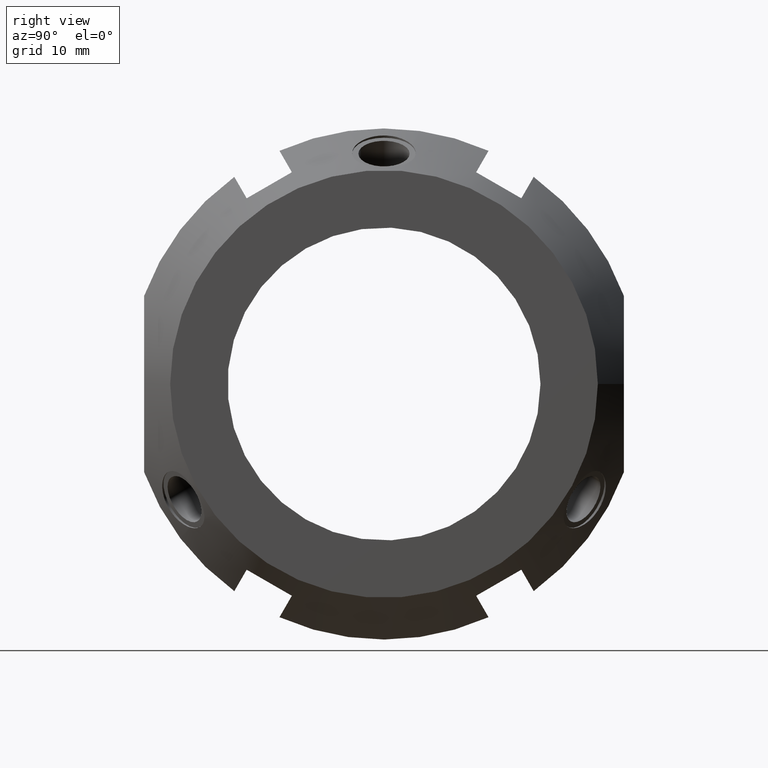
[diagram: clean part render]
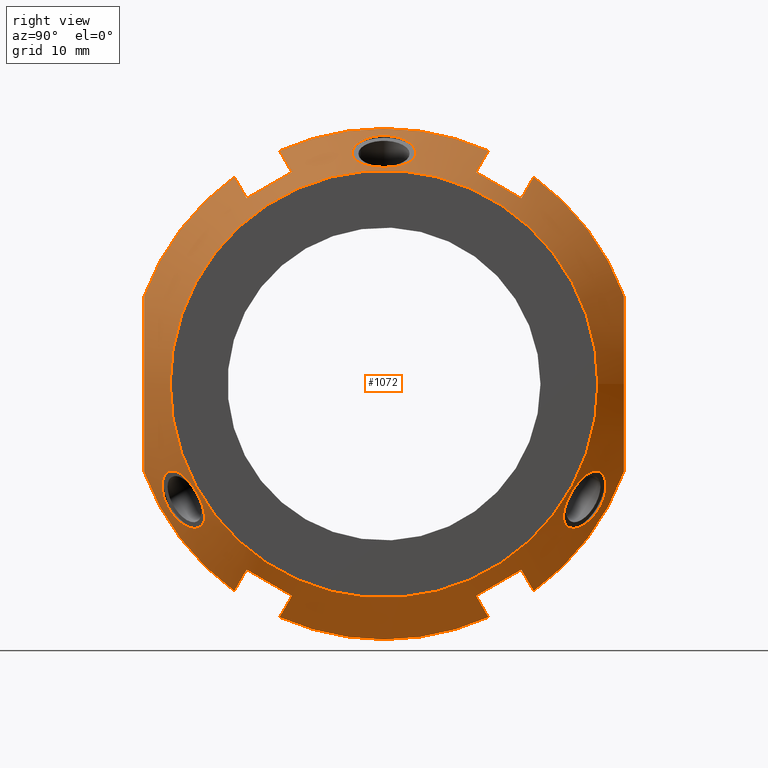
[diagram: same view with one face highlighted and labeled with its STEP entity id]
A machine part, right view. The second image highlights one B-rep face of the part: STEP entity #1072.
In plain terms, the highlighted conical surface has half-angle 30 deg.
Its self-contained STEP definition (entity closure, byte-faithful):
#90=CARTESIAN_POINT('',(17.156683017072663,13.165063509461106,-17.802558883257646));
#91=VERTEX_POINT('',#90);
#98=CARTESIAN_POINT('',(17.15668301707268,8.834936490538912,-20.302558883257639));
#99=VERTEX_POINT('',#98);
#100=CARTESIAN_POINT('',(17.15668301707268,8.834936490538912,-20.302558883257639));
#101=CARTESIAN_POINT('',(17.645596307971299,11.000000000000023,-19.052558883257632));
#102=CARTESIAN_POINT('',(17.156683017072663,13.165063509461106,-17.802558883257646));
#110=(BOUNDED_CURVE()B_SPLINE_CURVE(2,(#100,#101,#102),.UNSPECIFIED.,.F.,.U.)B_SPLINE_CURVE_WITH_KNOTS((3,3),(0.878093041452281,1.445696966272174),.UNSPECIFIED.)CURVE()GEOMETRIC_REPRESENTATION_ITEM()RATIONAL_B_SPLINE_CURVE((1.053428301604893,1.06020806203147,1.053428301604893))REPRESENTATION_ITEM(''));
#111=EDGE_CURVE('',#99,#91,#110,.T.);
#143=CARTESIAN_POINT('',(13.071796769724484,10.020994097492848,-22.356870919205427));
#144=VERTEX_POINT('',#143);
#145=CARTESIAN_POINT('',(13.071796769724479,10.020994097492849,-22.356870919205431));
#146=CARTESIAN_POINT('',(15.218718854177709,9.397979069940346,-21.277777237605562));
#147=CARTESIAN_POINT('',(17.15668301707268,8.83493649053891,-20.302558883257635));
#155=(BOUNDED_CURVE()B_SPLINE_CURVE(2,(#145,#146,#147),.UNSPECIFIED.,.F.,.U.)B_SPLINE_CURVE_WITH_KNOTS((3,3),(0.0,0.472368781864008),.UNSPECIFIED.)CURVE()GEOMETRIC_REPRESENTATION_ITEM()RATIONAL_B_SPLINE_CURVE((1.0,1.001295801185468,1.0))REPRESENTATION_ITEM(''));
#156=EDGE_CURVE('',#144,#99,#155,.T.);
#187=CARTESIAN_POINT('',(13.071796769724482,14.351121116415047,-19.856870919205424));
#188=VERTEX_POINT('',#187);
#195=CARTESIAN_POINT('',(17.156683017072663,13.165063509461106,-17.802558883257642));
#196=CARTESIAN_POINT('',(15.218718853243232,13.728106089133876,-18.777777238075522));
#197=CARTESIAN_POINT('',(13.071796769724479,14.351121116415047,-19.856870919205424));
#205=(BOUNDED_CURVE()B_SPLINE_CURVE(2,(#195,#196,#197),.UNSPECIFIED.,.F.,.U.)B_SPLINE_CURVE_WITH_KNOTS((3,3),(0.0,0.472368781864005),.UNSPECIFIED.)CURVE()GEOMETRIC_REPRESENTATION_ITEM()RATIONAL_B_SPLINE_CURVE((1.0,1.001295801158119,1.0))REPRESENTATION_ITEM(''));
#206=EDGE_CURVE('',#91,#188,#205,.T.);
#234=CARTESIAN_POINT('',(17.156683017072673,-13.16506350946109,-17.802558883257646));
#235=VERTEX_POINT('',#234);
#242=CARTESIAN_POINT('',(13.071796769724491,-14.35112111641503,-19.856870919205431));
#243=VERTEX_POINT('',#242);
#244=CARTESIAN_POINT('',(13.071796769724479,-14.351121116415033,-19.856870919205431));
#245=CARTESIAN_POINT('',(15.218718852278625,-13.728106089413947,-18.777777238560656));
#246=CARTESIAN_POINT('',(17.156683017072673,-13.16506350946109,-17.802558883257646));
#254=(BOUNDED_CURVE()B_SPLINE_CURVE(2,(#244,#245,#246),.UNSPECIFIED.,.F.,.U.)B_SPLINE_CURVE_WITH_KNOTS((3,3),(0.0,0.472368781864006),.UNSPECIFIED.)CURVE()GEOMETRIC_REPRESENTATION_ITEM()RATIONAL_B_SPLINE_CURVE((1.0,1.001295801090044,1.0))REPRESENTATION_ITEM(''));
#255=EDGE_CURVE('',#243,#235,#254,.T.);
#288=CARTESIAN_POINT('',(13.071796769724489,-10.020994097492839,-22.356870919205427));
#289=VERTEX_POINT('',#288);
#296=CARTESIAN_POINT('',(17.156683017072677,-8.834936490538897,-20.302558883257646));
#297=VERTEX_POINT('',#296);
#298=CARTESIAN_POINT('',(17.15668301707268,-8.834936490538896,-20.302558883257639));
#299=CARTESIAN_POINT('',(15.218718854141111,-9.39797906995096,-21.277777237623972));
#300=CARTESIAN_POINT('',(13.071796769724479,-10.020994097492839,-22.356870919205431));
#308=(BOUNDED_CURVE()B_SPLINE_CURVE(2,(#298,#299,#300),.UNSPECIFIED.,.F.,.U.)B_SPLINE_CURVE_WITH_KNOTS((3,3),(0.0,0.472368781864007),.UNSPECIFIED.)CURVE()GEOMETRIC_REPRESENTATION_ITEM()RATIONAL_B_SPLINE_CURVE((1.0,1.001295801182848,1.0))REPRESENTATION_ITEM(''));
#309=EDGE_CURVE('',#297,#289,#308,.T.);
#339=CARTESIAN_POINT('',(17.156683017072673,-13.16506350946109,-17.802558883257646));
#340=CARTESIAN_POINT('',(17.645596307971307,-10.999999999999979,-19.052558883257657));
#341=CARTESIAN_POINT('',(17.156683017072677,-8.834936490538897,-20.302558883257646));
#349=(BOUNDED_CURVE()B_SPLINE_CURVE(2,(#339,#340,#341),.UNSPECIFIED.,.F.,.U.)B_SPLINE_CURVE_WITH_KNOTS((3,3),(0.878093041452278,1.445696966272172),.UNSPECIFIED.)CURVE()GEOMETRIC_REPRESENTATION_ITEM()RATIONAL_B_SPLINE_CURVE((1.053428301604894,1.060208062031471,1.053428301604894))REPRESENTATION_ITEM(''));
#350=EDGE_CURVE('',#235,#297,#349,.T.);
#557=CARTESIAN_POINT('',(13.071796769724479,0.0,0.0));
#558=DIRECTION('',(1.0,0.0,0.0));
#559=DIRECTION('',(0.0,1.0,0.0));
#560=AXIS2_PLACEMENT_3D('',#557,#558,#559);
#561=CIRCLE('',#560,24.499999999999996);
#562=EDGE_CURVE('',#289,#144,#561,.T.);
#575=CARTESIAN_POINT('',(13.071796769724479,-23.000000000000043,-8.440971508066941));
#576=VERTEX_POINT('',#575);
#577=CARTESIAN_POINT('',(13.071796769724479,0.0,0.0));
#578=DIRECTION('',(1.0,0.0,0.0));
#579=DIRECTION('',(0.0,1.0,0.0));
#580=AXIS2_PLACEMENT_3D('',#577,#578,#579);
#581=CIRCLE('',#580,24.499999999999996);
#582=EDGE_CURVE('',#576,#243,#581,.T.);
#600=CARTESIAN_POINT('',(17.15668301707268,8.834936490538912,20.302558883257639));
#601=VERTEX_POINT('',#600);
#608=CARTESIAN_POINT('',(17.156683017072663,13.165063509461106,17.802558883257646));
#609=VERTEX_POINT('',#608);
#610=CARTESIAN_POINT('',(17.156683017072663,13.165063509461106,17.802558883257646));
#611=CARTESIAN_POINT('',(17.64559630797131,10.999999999999996,19.052558883257646));
#612=CARTESIAN_POINT('',(17.15668301707268,8.834936490538912,20.302558883257639));
#620=(BOUNDED_CURVE()B_SPLINE_CURVE(2,(#610,#611,#612),.UNSPECIFIED.,.F.,.U.)B_SPLINE_CURVE_WITH_KNOTS((3,3),(0.878093041452274,1.445696966272169),.UNSPECIFIED.)CURVE()GEOMETRIC_REPRESENTATION_ITEM()RATIONAL_B_SPLINE_CURVE((1.053428301604893,1.06020806203147,1.053428301604893))REPRESENTATION_ITEM(''));
#621=EDGE_CURVE('',#609,#601,#620,.T.);
#639=CARTESIAN_POINT('',(13.071796769724482,14.351121116415047,19.856870919205424));
#640=VERTEX_POINT('',#639);
#641=CARTESIAN_POINT('',(13.071796769724479,14.351121116415047,19.856870919205424));
#642=CARTESIAN_POINT('',(15.218718854249943,13.728106088841535,18.777777237569186));
#643=CARTESIAN_POINT('',(17.156683017072663,13.165063509461106,17.802558883257646));
#651=(BOUNDED_CURVE()B_SPLINE_CURVE(2,(#641,#642,#643),.UNSPECIFIED.,.F.,.U.)B_SPLINE_CURVE_WITH_KNOTS((3,3),(0.0,0.454794500828807),.UNSPECIFIED.)CURVE()GEOMETRIC_REPRESENTATION_ITEM()RATIONAL_B_SPLINE_CURVE((1.0,1.002284344326081,1.001975502368327))REPRESENTATION_ITEM(''));
#652=EDGE_CURVE('',#640,#609,#651,.T.);
#669=CARTESIAN_POINT('',(13.071796769724484,10.020994097492848,22.356870919205427));
#670=VERTEX_POINT('',#669);
#677=CARTESIAN_POINT('',(17.15668301707268,8.834936490538912,20.302558883257639));
#678=CARTESIAN_POINT('',(15.218718854028451,9.397979069983755,21.277777237680752));
#679=CARTESIAN_POINT('',(13.071796769724479,10.020994097492849,22.356870919205431));
#687=(BOUNDED_CURVE()B_SPLINE_CURVE(2,(#677,#678,#679),.UNSPECIFIED.,.F.,.U.)B_SPLINE_CURVE_WITH_KNOTS((3,3),(0.346464740693042,0.801259241557265),.UNSPECIFIED.)CURVE()GEOMETRIC_REPRESENTATION_ITEM()RATIONAL_B_SPLINE_CURVE((1.0019755023507,1.002284344305932,1.0))REPRESENTATION_ITEM(''));
#688=EDGE_CURVE('',#601,#670,#687,.T.);
#700=CARTESIAN_POINT('',(17.156683017072673,-13.16506350946109,17.802558883257646));
#701=VERTEX_POINT('',#700);
#708=CARTESIAN_POINT('',(17.156683017072677,-8.834936490538897,20.302558883257646));
#709=VERTEX_POINT('',#708);
#710=CARTESIAN_POINT('',(17.156683017072677,-8.834936490538897,20.302558883257646));
#711=CARTESIAN_POINT('',(17.645596307971307,-11.000000000000005,19.052558883257639));
#712=CARTESIAN_POINT('',(17.156683017072673,-13.16506350946109,17.802558883257646));
#720=(BOUNDED_CURVE()B_SPLINE_CURVE(2,(#710,#711,#712),.UNSPECIFIED.,.F.,.U.)B_SPLINE_CURVE_WITH_KNOTS((3,3),(0.878093041452279,1.445696966272173),.UNSPECIFIED.)CURVE()GEOMETRIC_REPRESENTATION_ITEM()RATIONAL_B_SPLINE_CURVE((1.053428301604894,1.060208062031471,1.053428301604894))REPRESENTATION_ITEM(''));
#721=EDGE_CURVE('',#709,#701,#720,.T.);
#739=CARTESIAN_POINT('',(13.071796769724489,-10.020994097492839,22.356870919205427));
#740=VERTEX_POINT('',#739);
#741=CARTESIAN_POINT('',(13.071796769724479,-10.020994097492839,22.356870919205431));
#742=CARTESIAN_POINT('',(15.218718854243228,-9.397979069921282,21.277777237572572));
#743=CARTESIAN_POINT('',(17.156683017072677,-8.834936490538897,20.302558883257646));
#751=(BOUNDED_CURVE()B_SPLINE_CURVE(2,(#741,#742,#743),.UNSPECIFIED.,.F.,.U.)B_SPLINE_CURVE_WITH_KNOTS((3,3),(0.0,0.454794500828629),.UNSPECIFIED.)CURVE()GEOMETRIC_REPRESENTATION_ITEM()RATIONAL_B_SPLINE_CURVE((1.0,1.002284344322123,1.001975502364905))REPRESENTATION_ITEM(''));
#752=EDGE_CURVE('',#740,#709,#751,.T.);
#769=CARTESIAN_POINT('',(13.071796769724491,-14.35112111641503,19.856870919205431));
#770=VERTEX_POINT('',#769);
#777=CARTESIAN_POINT('',(17.156683017072673,-13.16506350946109,17.802558883257646));
#778=CARTESIAN_POINT('',(15.218718854123727,-13.728106088878228,18.777777237632758));
#779=CARTESIAN_POINT('',(13.071796769724479,-14.351121116415033,19.856870919205431));
#787=(BOUNDED_CURVE()B_SPLINE_CURVE(2,(#777,#778,#779),.UNSPECIFIED.,.F.,.U.)B_SPLINE_CURVE_WITH_KNOTS((3,3),(0.346464740709046,0.801259241557265),.UNSPECIFIED.)CURVE()GEOMETRIC_REPRESENTATION_ITEM()RATIONAL_B_SPLINE_CURVE((1.001975502356515,1.00228434431255,1.0))REPRESENTATION_ITEM(''));
#788=EDGE_CURVE('',#701,#770,#787,.T.);
#800=CARTESIAN_POINT('',(13.071796769724479,23.00000000000005,8.440971508066923));
#801=VERTEX_POINT('',#800);
#802=CARTESIAN_POINT('',(13.071796769724479,0.0,0.0));
#803=DIRECTION('',(1.0,0.0,0.0));
#804=DIRECTION('',(0.0,1.0,0.0));
#805=AXIS2_PLACEMENT_3D('',#802,#803,#804);
#806=CIRCLE('',#805,24.499999999999996);
#807=EDGE_CURVE('',#801,#640,#806,.T.);
#826=CARTESIAN_POINT('',(13.071796769724479,-23.00000000000005,8.440971508066923));
#827=VERTEX_POINT('',#826);
#834=CARTESIAN_POINT('',(13.071796769724479,0.0,0.0));
#835=DIRECTION('',(1.0,0.0,0.0));
#836=DIRECTION('',(0.0,1.0,0.0));
#837=AXIS2_PLACEMENT_3D('',#834,#835,#836);
#838=CIRCLE('',#837,24.499999999999996);
#839=EDGE_CURVE('',#770,#827,#838,.T.);
#851=CARTESIAN_POINT('',(13.071796769724479,23.000000000000043,-8.440971508066941));
#852=VERTEX_POINT('',#851);
#853=CARTESIAN_POINT('',(13.071796769724479,23.000000000000043,-8.440971508066937));
#854=CARTESIAN_POINT('',(18.108883301939937,23.000000000000046,-6.944673E-015));
#855=CARTESIAN_POINT('',(13.071796769724479,23.00000000000005,8.440971508066918));
#863=(BOUNDED_CURVE()B_SPLINE_CURVE(2,(#853,#854,#855),.UNSPECIFIED.,.F.,.U.)B_SPLINE_CURVE_WITH_KNOTS((3,3),(0.0,1.766352173265538),.UNSPECIFIED.)CURVE()GEOMETRIC_REPRESENTATION_ITEM()RATIONAL_B_SPLINE_CURVE((1.0,1.065217391304347,1.0))REPRESENTATION_ITEM(''));
#864=EDGE_CURVE('',#852,#801,#863,.T.);
#882=CARTESIAN_POINT('',(13.071796769724479,-23.00000000000005,8.440971508066918));
#883=CARTESIAN_POINT('',(18.108883301939937,-23.000000000000046,-6.944673E-015));
#884=CARTESIAN_POINT('',(13.071796769724479,-23.000000000000043,-8.440971508066937));
#892=(BOUNDED_CURVE()B_SPLINE_CURVE(2,(#882,#883,#884),.UNSPECIFIED.,.F.,.U.)B_SPLINE_CURVE_WITH_KNOTS((3,3),(0.0,1.766352173265538),.UNSPECIFIED.)CURVE()GEOMETRIC_REPRESENTATION_ITEM()RATIONAL_B_SPLINE_CURVE((1.0,1.065217391304347,1.0))REPRESENTATION_ITEM(''));
#893=EDGE_CURVE('',#827,#576,#892,.T.);
#899=CARTESIAN_POINT('',(16.535898384862236,0.0,0.0));
#900=DIRECTION('',(-1.0,0.0,0.0));
#901=DIRECTION('',(0.0,1.0,0.0));
#902=AXIS2_PLACEMENT_3D('',#899,#900,#901);
#903=CONICAL_SURFACE('',#902,22.5,29.999999999999954);
#904=ORIENTED_EDGE('',*,*,#206,.T.);
#905=CARTESIAN_POINT('',(13.071796769724479,0.0,0.0));
#906=DIRECTION('',(1.0,0.0,0.0));
#907=DIRECTION('',(0.0,1.0,0.0));
#908=AXIS2_PLACEMENT_3D('',#905,#906,#907);
#909=CIRCLE('',#908,24.499999999999996);
#910=EDGE_CURVE('',#188,#852,#909,.T.);
#911=ORIENTED_EDGE('',*,*,#910,.T.);
#912=ORIENTED_EDGE('',*,*,#864,.T.);
#913=ORIENTED_EDGE('',*,*,#807,.T.);
#914=ORIENTED_EDGE('',*,*,#652,.T.);
#915=ORIENTED_EDGE('',*,*,#621,.T.);
#916=ORIENTED_EDGE('',*,*,#688,.T.);
#917=CARTESIAN_POINT('',(13.071796769724479,0.0,0.0));
#918=DIRECTION('',(1.0,0.0,0.0));
#919=DIRECTION('',(0.0,1.0,0.0));
#920=AXIS2_PLACEMENT_3D('',#917,#918,#919);
#921=CIRCLE('',#920,24.499999999999996);
#922=EDGE_CURVE('',#670,#740,#921,.T.);
#923=ORIENTED_EDGE('',*,*,#922,.T.);
#924=ORIENTED_EDGE('',*,*,#752,.T.);
#925=ORIENTED_EDGE('',*,*,#721,.T.);
#926=ORIENTED_EDGE('',*,*,#788,.T.);
#927=ORIENTED_EDGE('',*,*,#839,.T.);
#928=ORIENTED_EDGE('',*,*,#893,.T.);
#929=ORIENTED_EDGE('',*,*,#582,.T.);
#930=ORIENTED_EDGE('',*,*,#255,.T.);
#931=ORIENTED_EDGE('',*,*,#350,.T.);
#932=ORIENTED_EDGE('',*,*,#309,.T.);
#933=ORIENTED_EDGE('',*,*,#562,.T.);
#934=ORIENTED_EDGE('',*,*,#156,.T.);
#935=ORIENTED_EDGE('',*,*,#111,.T.);
#936=EDGE_LOOP('',(#904,#911,#912,#913,#914,#915,#916,#923,#924,#925,#926,#927,#928,#929,#930,#931,#932,#933,#934,#935));
#937=FACE_OUTER_BOUND('',#936,.T.);
#938=CARTESIAN_POINT('',(19.999999999999993,20.500000000000004,0.0));
#939=VERTEX_POINT('',#938);
#940=CARTESIAN_POINT('',(19.999999999999993,0.0,0.0));
#941=DIRECTION('',(1.0,0.0,0.0));
#942=DIRECTION('',(0.0,1.0,0.0));
#943=AXIS2_PLACEMENT_3D('',#940,#941,#942);
#944=CIRCLE('',#943,20.500000000000004);
#945=EDGE_CURVE('',#939,#939,#944,.T.);
#946=ORIENTED_EDGE('',*,*,#945,.F.);
#947=EDGE_LOOP('',(#946));
#948=FACE_BOUND('',#947,.T.);
#949=CARTESIAN_POINT('',(16.966850486857354,3.042861884859035,22.042151303282868));
#950=VERTEX_POINT('',#949);
#951=CARTESIAN_POINT('',(16.966850486857354,3.042861884859035,22.042151303282868));
#952=CARTESIAN_POINT('',(17.283793923361333,3.017838264688471,21.860882996397166));
#953=CARTESIAN_POINT('',(17.622796008124478,2.921312594642219,21.677003340361537));
#954=CARTESIAN_POINT('',(18.249011939166817,2.58664812122553,21.355343496772839));
#955=CARTESIAN_POINT('',(18.536031829853922,2.348527982895077,21.217166443578542));
#956=CARTESIAN_POINT('',(18.990050761805051,1.814566289413879,21.006413692311735));
#957=CARTESIAN_POINT('',(19.188778368822572,1.481400681462266,20.919037135700151));
#958=CARTESIAN_POINT('',(19.452960089890709,0.757091688309187,20.805151396864296));
#959=CARTESIAN_POINT('',(19.518137870333042,0.36591663055902,20.778203230275494));
#960=CARTESIAN_POINT('',(19.518137870333042,-0.36591663055902,20.778203230275501));
#961=CARTESIAN_POINT('',(19.452960089890709,-0.757091688309188,20.805151396864296));
#962=CARTESIAN_POINT('',(19.188778368822572,-1.481400681462267,20.919037135700151));
#963=CARTESIAN_POINT('',(18.990050761805051,-1.81456628941388,21.006413692311739));
#964=CARTESIAN_POINT('',(18.536031829853922,-2.348527982895077,21.217166443578542));
#965=CARTESIAN_POINT('',(18.24901193916682,-2.586648121225528,21.355343496772846));
#966=CARTESIAN_POINT('',(17.622796008124485,-2.921312594642218,21.677003340361544));
#967=CARTESIAN_POINT('',(17.283793923361333,-3.017838264688473,21.860882996397166));
#968=CARTESIAN_POINT('',(16.619692883687584,-3.070271002703111,22.240699888617886));
#969=CARTESIAN_POINT('',(16.250953172846188,-3.015812450584485,22.463597140312864));
#970=CARTESIAN_POINT('',(15.576043844190684,-2.731826977133262,22.892359936174497));
#971=CARTESIAN_POINT('',(15.26956389013144,-2.502320309642646,23.097750211307115));
#972=CARTESIAN_POINT('',(14.786171889773151,-1.95605670152832,23.430458529024477));
#973=CARTESIAN_POINT('',(14.578419510047313,-1.604498593421022,23.578896683859));
#974=CARTESIAN_POINT('',(14.303128684911986,-0.82691658386949,23.777968191012505));
#975=CARTESIAN_POINT('',(14.235382907247971,-0.400864176750552,23.828203230275491));
#976=CARTESIAN_POINT('',(14.235382907247971,0.400864176750552,23.828203230275491));
#977=CARTESIAN_POINT('',(14.303128684911982,0.826916583869487,23.777968191012505));
#978=CARTESIAN_POINT('',(14.578419510047311,1.60449859342102,23.578896683859));
#979=CARTESIAN_POINT('',(14.786171889773151,1.956056701528319,23.430458529024477));
#980=CARTESIAN_POINT('',(15.26956389013144,2.502320309642645,23.097750211307115));
#981=CARTESIAN_POINT('',(15.576043844190684,2.731826977133263,22.892359936174497));
#982=CARTESIAN_POINT('',(16.250953172846188,3.015812450584484,22.463597140312871));
#983=CARTESIAN_POINT('',(16.619692883687581,3.07027100270311,22.240699888617886));
#984=CARTESIAN_POINT('',(16.96685048685735,3.042861884859036,22.042151303282868));
#985=B_SPLINE_CURVE_WITH_KNOTS('',3,(#951,#952,#953,#954,#955,#956,#957,#958,#959,#960,#961,#962,#963,#964,#965,#966,#967,#968,#969,#970,#971,#972,#973,#974,#975,#976,#977,#978,#979,#980,#981,#982,#983,#984),.UNSPECIFIED.,.T.,.U.,(4,2,2,2,2,2,2,2,2,2,2,2,2,2,2,2,4),(0.0,0.109792427030074,0.219584854060149,0.329359843227855,0.439134832395561,0.548909821563267,0.658684810730973,0.768477237761047,0.878269664791122,0.998528586175897,1.118787507560673,1.239046760585839,1.359306013611004,1.47956526663617,1.599824519661335,1.720083441046111,1.840342362430887),.UNSPECIFIED.);
#986=EDGE_CURVE('',#950,#950,#985,.T.);
#987=ORIENTED_EDGE('',*,*,#986,.T.);
#988=EDGE_LOOP('',(#987));
#989=FACE_BOUND('',#988,.T.);
#990=CARTESIAN_POINT('',(16.966850486857354,-20.610493925132754,-8.385879959146106));
#991=VERTEX_POINT('',#990);
#992=CARTESIAN_POINT('',(16.966850486857354,-20.610493925132754,-8.385879959146106));
#993=CARTESIAN_POINT('',(17.28379392336133,-20.440999156383455,-8.316916896465614));
#994=CARTESIAN_POINT('',(17.622796008124485,-20.233491867994342,-8.308570750825172));
#995=CARTESIAN_POINT('',(18.24901193916682,-19.787594035360854,-8.437568764753818));
#996=CARTESIAN_POINT('',(18.536031829853922,-19.548869127909288,-8.574698327103507));
#997=CARTESIAN_POINT('',(18.990050761805051,-19.099371044654173,-8.931746342672579));
#998=CARTESIAN_POINT('',(19.188778368822572,-18.857117922957521,-9.176587944520168));
#999=CARTESIAN_POINT('',(19.452960089890709,-18.39633548342038,-9.746915063362337));
#1000=CARTESIAN_POINT('',(19.518137870333046,-18.177410157693984,-10.072208517406429));
#1001=CARTESIAN_POINT('',(19.518137870333046,-17.811493527134964,-10.705994712869062));
#1002=CARTESIAN_POINT('',(19.452960089890706,-17.639243795111188,-11.058236333501954));
#1003=CARTESIAN_POINT('',(19.188778368822568,-17.375717241495256,-11.742449191179972));
#1004=CARTESIAN_POINT('',(18.990050761805051,-17.284804755240298,-12.074667349639148));
#1005=CARTESIAN_POINT('',(18.536031829853926,-17.200341145014217,-12.642468116475028));
#1006=CARTESIAN_POINT('',(18.249011939166824,-17.200945914135325,-12.917774732019014));
#1007=CARTESIAN_POINT('',(17.622796008124485,-17.312179273352118,-13.368432589536358));
#1008=CARTESIAN_POINT('',(17.283793923361333,-17.423160891694991,-13.543966099931538));
#1009=CARTESIAN_POINT('',(16.619692883687584,-17.725875600137272,-13.779282629152547));
#1010=CARTESIAN_POINT('',(16.250953172846188,-17.946139558598173,-13.843568765411998));
#1011=CARTESIAN_POINT('',(15.576043844190684,-18.459451768737601,-13.812011529028306));
#1012=CARTESIAN_POINT('',(15.26956389013144,-18.752078298438029,-13.715948062209829));
#1013=CARTESIAN_POINT('',(14.786171889773151,-19.313343957688815,-13.409224059278557));
#1014=CARTESIAN_POINT('',(14.578419510047311,-19.617674224720044,-13.1789848841685));
#1015=CARTESIAN_POINT('',(14.303128684911982,-20.178866211860402,-12.60511486394787));
#1016=CARTESIAN_POINT('',(14.235382907247971,-20.435397235581728,-12.261260175670856));
#1017=CARTESIAN_POINT('',(14.235382907247971,-20.836261412332281,-11.566943054604629));
#1018=CARTESIAN_POINT('',(14.303128684911988,-21.005782795729889,-11.17285332706463));
#1019=CARTESIAN_POINT('',(14.578419510047315,-21.222172818141068,-10.399911799690496));
#1020=CARTESIAN_POINT('',(14.786171889773151,-21.269400659217126,-10.021234469745913));
#1021=CARTESIAN_POINT('',(15.269563890131439,-21.25439860808067,-9.381802149097277));
#1022=CARTESIAN_POINT('',(15.576043844190686,-21.191278745870861,-9.08034840714619));
#1023=CARTESIAN_POINT('',(16.250953172846192,-20.96195200918266,-8.620028374900862));
#1024=CARTESIAN_POINT('',(16.619692883687584,-20.796146602840373,-8.461417259465323));
#1025=CARTESIAN_POINT('',(16.966850486857354,-20.610493925132754,-8.385879959146104));
#1026=B_SPLINE_CURVE_WITH_KNOTS('',3,(#992,#993,#994,#995,#996,#997,#998,#999,#1000,#1001,#1002,#1003,#1004,#1005,#1006,#1007,#1008,#1009,#1010,#1011,#1012,#1013,#1014,#1015,#1016,#1017,#1018,#1019,#1020,#1021,#1022,#1023,#1024,#1025),.UNSPECIFIED.,.T.,.U.,(4,2,2,2,2,2,2,2,2,2,2,2,2,2,2,2,4),(0.0,0.109792427030074,0.219584854060148,0.329359843227854,0.43913483239556,0.548909821563266,0.658684810730972,0.768477237761047,0.878269664791121,0.998528586175897,1.118787507560673,1.239046760585838,1.359306013611004,1.47956526663617,1.599824519661335,1.720083441046111,1.840342362430887),.UNSPECIFIED.);
#1027=EDGE_CURVE('',#991,#991,#1026,.T.);
#1028=ORIENTED_EDGE('',*,*,#1027,.T.);
#1029=EDGE_LOOP('',(#1028));
#1030=FACE_BOUND('',#1029,.T.);
#1031=CARTESIAN_POINT('',(16.966850486857354,17.567632040273715,-13.656271344136767));
#1032=VERTEX_POINT('',#1031);
#1033=CARTESIAN_POINT('',(16.966850486857354,17.567632040273715,-13.656271344136767));
#1034=CARTESIAN_POINT('',(17.283793923361333,17.42316089169498,-13.543966099931556));
#1035=CARTESIAN_POINT('',(17.622796008124485,17.312179273352111,-13.368432589536372));
#1036=CARTESIAN_POINT('',(18.24901193916682,17.200945914135318,-12.917774732019026));
#1037=CARTESIAN_POINT('',(18.536031829853922,17.200341145014203,-12.642468116475044));
#1038=CARTESIAN_POINT('',(18.990050761805051,17.284804755240287,-12.074667349639164));
#1039=CARTESIAN_POINT('',(19.188778368822568,17.375717241495249,-11.742449191179984));
#1040=CARTESIAN_POINT('',(19.452960089890709,17.639243795111181,-11.058236333501963));
#1041=CARTESIAN_POINT('',(19.518137870333042,17.811493527134953,-10.705994712869076));
#1042=CARTESIAN_POINT('',(19.518137870333042,18.17741015769397,-10.072208517406443));
#1043=CARTESIAN_POINT('',(19.452960089890709,18.396335483420366,-9.746915063362353));
#1044=CARTESIAN_POINT('',(19.188778368822568,18.857117922957514,-9.176587944520183));
#1045=CARTESIAN_POINT('',(18.990050761805051,19.099371044654166,-8.931746342672595));
#1046=CARTESIAN_POINT('',(18.536031829853926,19.548869127909285,-8.574698327103521));
#1047=CARTESIAN_POINT('',(18.249011939166824,19.787594035360847,-8.437568764753834));
#1048=CARTESIAN_POINT('',(17.622796008124485,20.233491867994331,-8.308570750825187));
#1049=CARTESIAN_POINT('',(17.283793923361333,20.440999156383455,-8.316916896465628));
#1050=CARTESIAN_POINT('',(16.619692883687584,20.796146602840373,-8.461417259465337));
#1051=CARTESIAN_POINT('',(16.250953172846188,20.961952009182649,-8.620028374900876));
#1052=CARTESIAN_POINT('',(15.576043844190684,21.191278745870854,-9.080348407146202));
#1053=CARTESIAN_POINT('',(15.26956389013144,21.254398608080667,-9.38180214909729));
#1054=CARTESIAN_POINT('',(14.786171889773147,21.269400659217123,-10.021234469745925));
#1055=CARTESIAN_POINT('',(14.578419510047315,21.222172818141068,-10.399911799690507));
#1056=CARTESIAN_POINT('',(14.303128684911988,21.005782795729889,-11.172853327064642));
#1057=CARTESIAN_POINT('',(14.235382907247969,20.836261412332277,-11.566943054604643));
#1058=CARTESIAN_POINT('',(14.235382907247969,20.435397235581721,-12.261260175670872));
#1059=CARTESIAN_POINT('',(14.303128684911986,20.178866211860399,-12.605114863947886));
#1060=CARTESIAN_POINT('',(14.57841951004731,19.617674224720041,-13.178984884168514));
#1061=CARTESIAN_POINT('',(14.786171889773145,19.313343957688801,-13.409224059278571));
#1062=CARTESIAN_POINT('',(15.269563890131437,18.752078298438018,-13.715948062209842));
#1063=CARTESIAN_POINT('',(15.576043844190682,18.459451768737591,-13.812011529028316));
#1064=CARTESIAN_POINT('',(16.250953172846188,17.946139558598162,-13.843568765412009));
#1065=CARTESIAN_POINT('',(16.619692883687584,17.725875600137261,-13.779282629152567));
#1066=CARTESIAN_POINT('',(16.966850486857354,17.567632040273711,-13.656271344136767));
#1067=B_SPLINE_CURVE_WITH_KNOTS('',3,(#1033,#1034,#1035,#1036,#1037,#1038,#1039,#1040,#1041,#1042,#1043,#1044,#1045,#1046,#1047,#1048,#1049,#1050,#1051,#1052,#1053,#1054,#1055,#1056,#1057,#1058,#1059,#1060,#1061,#1062,#1063,#1064,#1065,#1066),.UNSPECIFIED.,.T.,.U.,(4,2,2,2,2,2,2,2,2,2,2,2,2,2,2,2,4),(0.0,0.109792427030074,0.219584854060149,0.329359843227855,0.439134832395561,0.548909821563267,0.658684810730973,0.768477237761047,0.878269664791122,0.998528586175898,1.118787507560673,1.239046760585839,1.359306013611005,1.479565266636171,1.599824519661336,1.720083441046112,1.840342362430888),.UNSPECIFIED.);
#1068=EDGE_CURVE('',#1032,#1032,#1067,.T.);
#1069=ORIENTED_EDGE('',*,*,#1068,.T.);
#1070=EDGE_LOOP('',(#1069));
#1071=FACE_BOUND('',#1070,.T.);
#1072=ADVANCED_FACE('',(#937,#948,#989,#1030,#1071),#903,.T.);